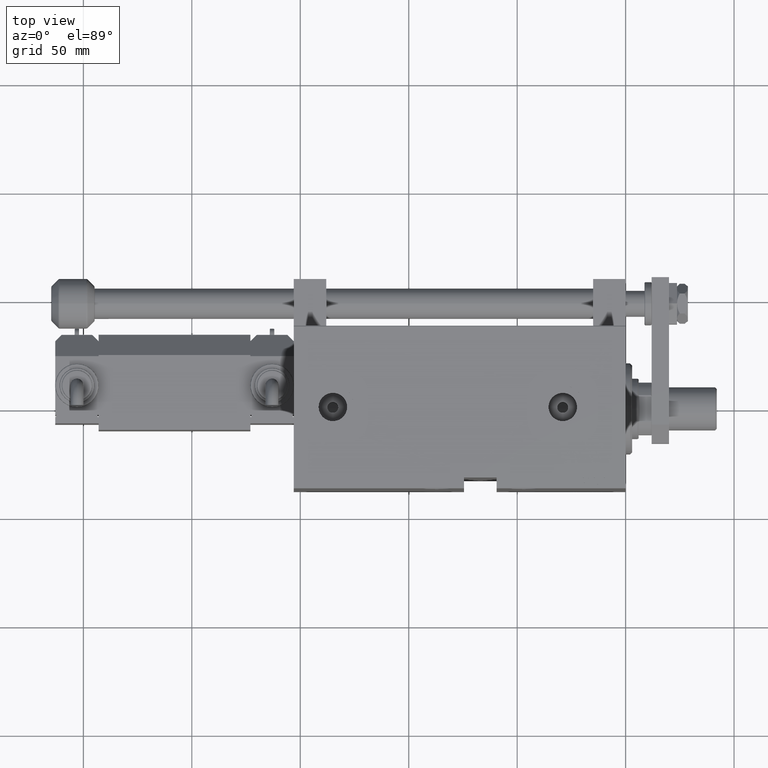
[diagram: clean part render]
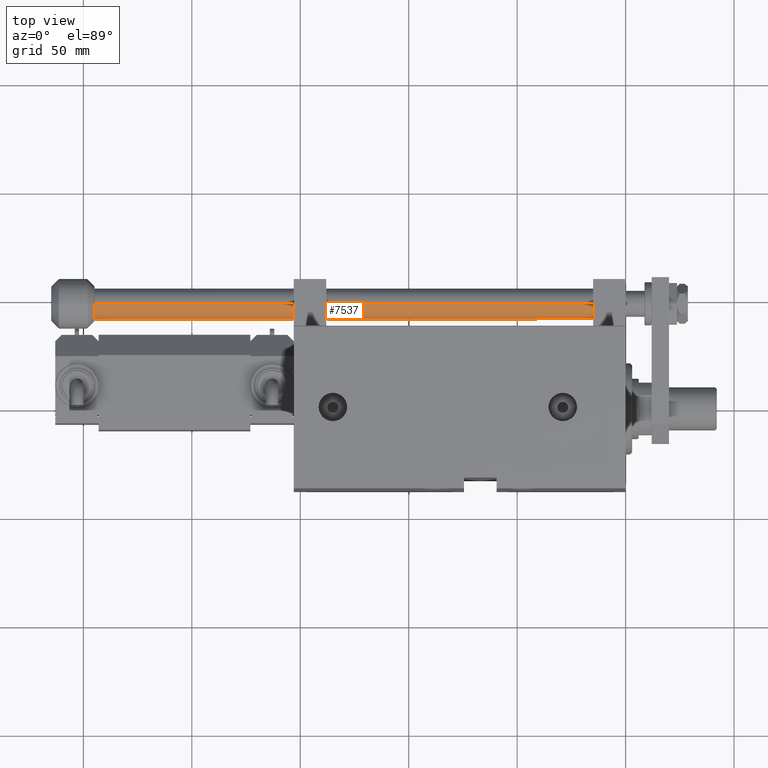
[diagram: same view with one face highlighted and labeled with its STEP entity id]
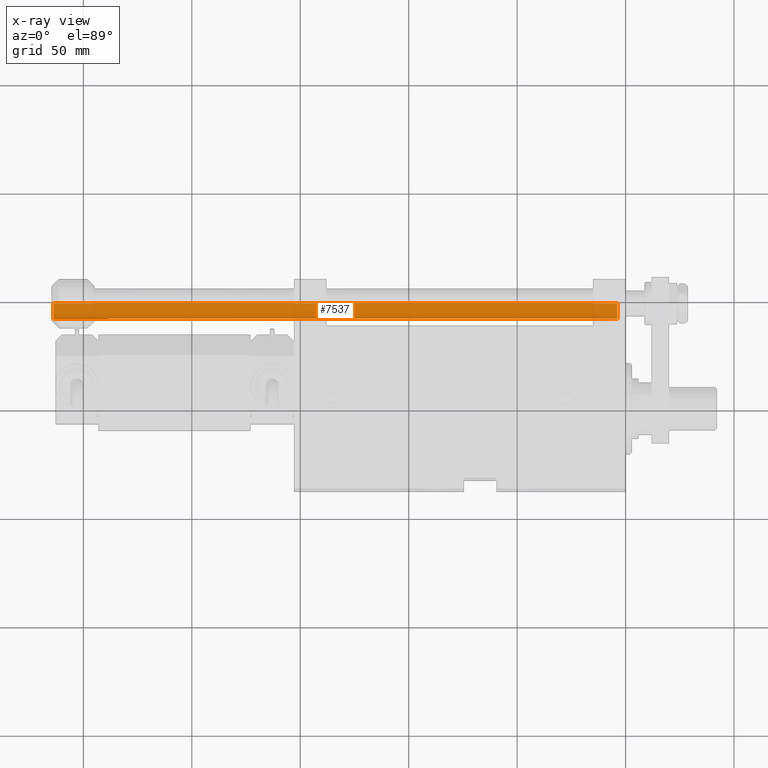
[diagram: x-ray of the same camera — body ghosted, the highlighted face saturated]
A machine part, top view. The second image highlights one B-rep face of the part: STEP entity #7537.
The next image is the same camera in x-ray: the body ghosted, the highlighted face saturated — about 0% of this face is hidden behind the body in this view.
In plain terms, the highlighted cylindrical surface (edge-blend (fillet) strip) has radius 7 mm, axis along (1, 0, -0).
Its self-contained STEP definition (entity closure, byte-faithful):
#686 = DIRECTION ( 'NONE',  ( -0.000000000000000000, -0.000000000000000000, -1.000000000000000000 ) ) ;
#825 = CARTESIAN_POINT ( 'NONE',  ( 0.000000000000000000, 0.000000000000000000, 262.0000000000000000 ) ) ;
#2070 = CARTESIAN_POINT ( 'NONE',  ( -7.000000000000000000, 0.000000000000000000, 263.0000000000000000 ) ) ;
#2109 = CYLINDRICAL_SURFACE ( 'NONE', #11664, 7.000000000000000000 ) ;
#2367 = DIRECTION ( 'NONE',  ( -0.000000000000000000, -0.000000000000000000, 1.000000000000000000 ) ) ;
#2463 = CIRCLE ( 'NONE', #26709, 7.000000000000000000 ) ;
#2688 = CIRCLE ( 'NONE', #12377, 7.000000000000000000 ) ;
#3492 = LINE ( 'NONE', #42215, #32050 ) ;
#4304 = CARTESIAN_POINT ( 'NONE',  ( 7.000000000000000000, 8.572527594031473190E-16, 2.000000000000057288 ) ) ;
#7537 = ADVANCED_FACE ( 'NONE', ( #24669 ), #2109, .T. ) ;
#8153 = ORIENTED_EDGE ( 'NONE', *, *, #12870, .T. ) ;
#8613 = VERTEX_POINT ( 'NONE', #4304 ) ;
#8884 = CARTESIAN_POINT ( 'NONE',  ( 7.000000000000000000, 8.572527594031473190E-16, 262.0000000000000000 ) ) ;
#8935 = DIRECTION ( 'NONE',  ( 1.000000000000000000, 0.000000000000000000, 0.000000000000000000 ) ) ;
#10474 = ORIENTED_EDGE ( 'NONE', *, *, #18083, .T. ) ;
#10534 = EDGE_LOOP ( 'NONE', ( #40266, #10474, #14257, #8153, #47112, #16503 ) ) ;
#11119 = CARTESIAN_POINT ( 'NONE',  ( 0.000000000000000000, 0.000000000000000000, 262.0000000000000000 ) ) ;
#11226 = EDGE_CURVE ( 'NONE', #19239, #8613, #3492, .T. ) ;
#11664 = AXIS2_PLACEMENT_3D ( 'NONE', #17583, #24160, #20373 ) ;
#12377 = AXIS2_PLACEMENT_3D ( 'NONE', #18080, #2367, #33517 ) ;
#12870 = EDGE_CURVE ( 'NONE', #35477, #15943, #34496, .T. ) ;
#14257 = ORIENTED_EDGE ( 'NONE', *, *, #27575, .T. ) ;
#15100 = AXIS2_PLACEMENT_3D ( 'NONE', #20840, #24127, #28430 ) ;
#15943 = VERTEX_POINT ( 'NONE', #40978 ) ;
#16503 = ORIENTED_EDGE ( 'NONE', *, *, #34315, .T. ) ;
#17035 = DIRECTION ( 'NONE',  ( -0.000000000000000000, -0.000000000000000000, -1.000000000000000000 ) ) ;
#17583 = CARTESIAN_POINT ( 'NONE',  ( 0.000000000000000000, 0.000000000000000000, 263.0000000000000000 ) ) ;
#18080 = CARTESIAN_POINT ( 'NONE',  ( 0.000000000000000000, 0.000000000000000000, 2.000000000000057288 ) ) ;
#18083 = EDGE_CURVE ( 'NONE', #19239, #47811, #37455, .T. ) ;
#19239 = VERTEX_POINT ( 'NONE', #8884 ) ;
#20373 = DIRECTION ( 'NONE',  ( -1.000000000000000000, 0.000000000000000000, 0.000000000000000000 ) ) ;
#20457 = AXIS2_PLACEMENT_3D ( 'NONE', #825, #27430, #8935 ) ;
#20472 = EDGE_CURVE ( 'NONE', #15943, #26467, #32469, .T. ) ;
#20840 = CARTESIAN_POINT ( 'NONE',  ( 0.000000000000000000, 0.000000000000000000, 262.0000000000000000 ) ) ;
#22036 = CARTESIAN_POINT ( 'NONE',  ( 0.5000000000000001110, -6.982120021884471228, 262.0000000000000000 ) ) ;
#24127 = DIRECTION ( 'NONE',  ( 0.000000000000000000, 0.000000000000000000, -1.000000000000000000 ) ) ;
#24160 = DIRECTION ( 'NONE',  ( -0.000000000000000000, -0.000000000000000000, -1.000000000000000000 ) ) ;
#24669 = FACE_OUTER_BOUND ( 'NONE', #10534, .T. ) ;
#26467 = VERTEX_POINT ( 'NONE', #42531 ) ;
#26709 = AXIS2_PLACEMENT_3D ( 'NONE', #11119, #35144, #50067 ) ;
#27430 = DIRECTION ( 'NONE',  ( 0.000000000000000000, 0.000000000000000000, -1.000000000000000000 ) ) ;
#27575 = EDGE_CURVE ( 'NONE', #47811, #35477, #2463, .T. ) ;
#28430 = DIRECTION ( 'NONE',  ( 1.000000000000000000, 0.000000000000000000, 0.000000000000000000 ) ) ;
#32050 = VECTOR ( 'NONE', #686, 1000.000000000000000 ) ;
#32469 = LINE ( 'NONE', #2070, #33842 ) ;
#33517 = DIRECTION ( 'NONE',  ( 1.000000000000000000, 0.000000000000000000, 0.000000000000000000 ) ) ;
#33551 = CARTESIAN_POINT ( 'NONE',  ( -0.4999999999999975020, -6.982120021884471228, 262.0000000000000000 ) ) ;
#33842 = VECTOR ( 'NONE', #17035, 1000.000000000000000 ) ;
#34315 = EDGE_CURVE ( 'NONE', #26467, #8613, #2688, .T. ) ;
#34496 = CIRCLE ( 'NONE', #15100, 7.000000000000000000 ) ;
#35144 = DIRECTION ( 'NONE',  ( 0.000000000000000000, 0.000000000000000000, -1.000000000000000000 ) ) ;
#35477 = VERTEX_POINT ( 'NONE', #33551 ) ;
#37455 = CIRCLE ( 'NONE', #20457, 7.000000000000000000 ) ;
#40266 = ORIENTED_EDGE ( 'NONE', *, *, #11226, .F. ) ;
#40978 = CARTESIAN_POINT ( 'NONE',  ( -7.000000000000000000, 0.000000000000000000, 262.0000000000000000 ) ) ;
#42215 = CARTESIAN_POINT ( 'NONE',  ( 7.000000000000000000, 8.572527594031473190E-16, 263.0000000000000000 ) ) ;
#42531 = CARTESIAN_POINT ( 'NONE',  ( -7.000000000000000000, 0.000000000000000000, 2.000000000000057288 ) ) ;
#47112 = ORIENTED_EDGE ( 'NONE', *, *, #20472, .T. ) ;
#47811 = VERTEX_POINT ( 'NONE', #22036 ) ;
#50067 = DIRECTION ( 'NONE',  ( 1.000000000000000000, 0.000000000000000000, 0.000000000000000000 ) ) ;